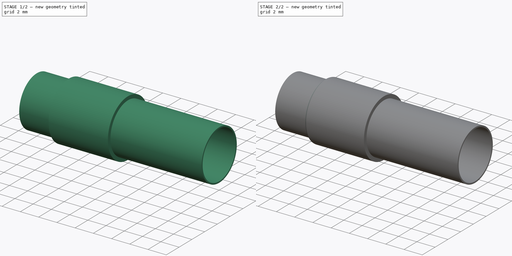
[diagram: build sequence overview — one tinted view per stage of 2, left to right]
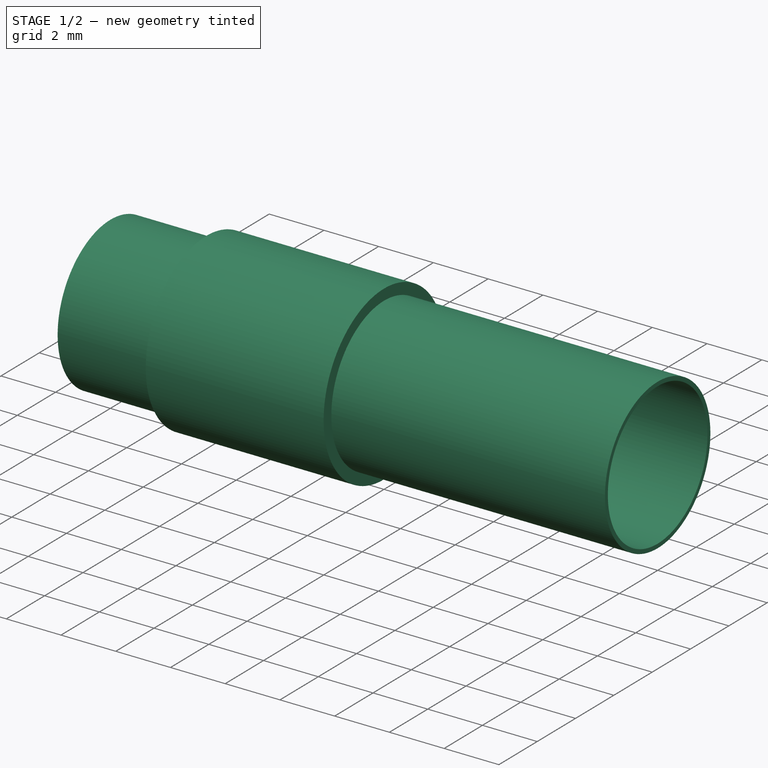
[diagram: stage 1 of 2 — iso view after this stage's code; geometry added in this stage tinted green]
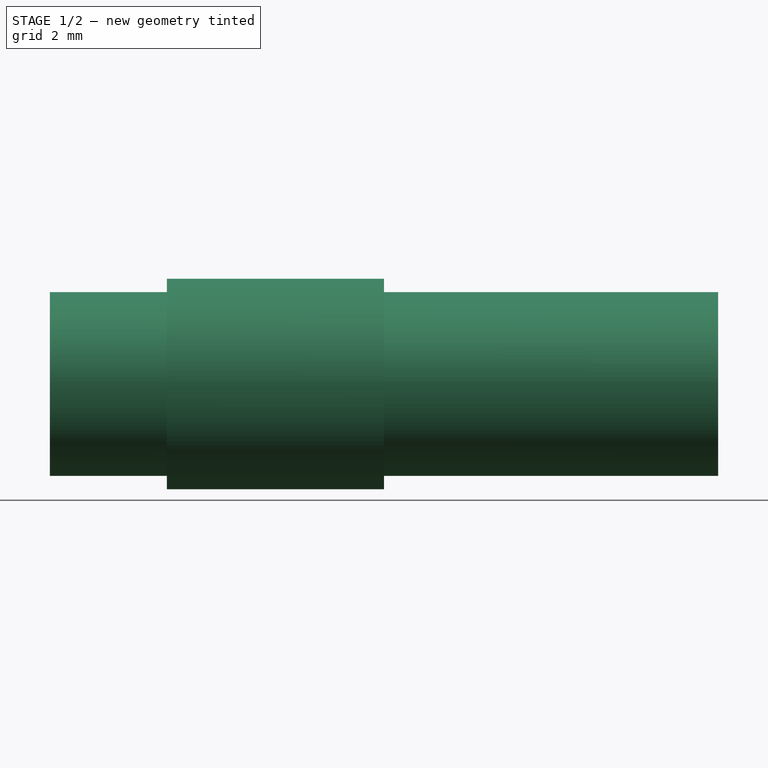
[diagram: stage 1 of 2 — front view after this stage's code; geometry added in this stage tinted green]
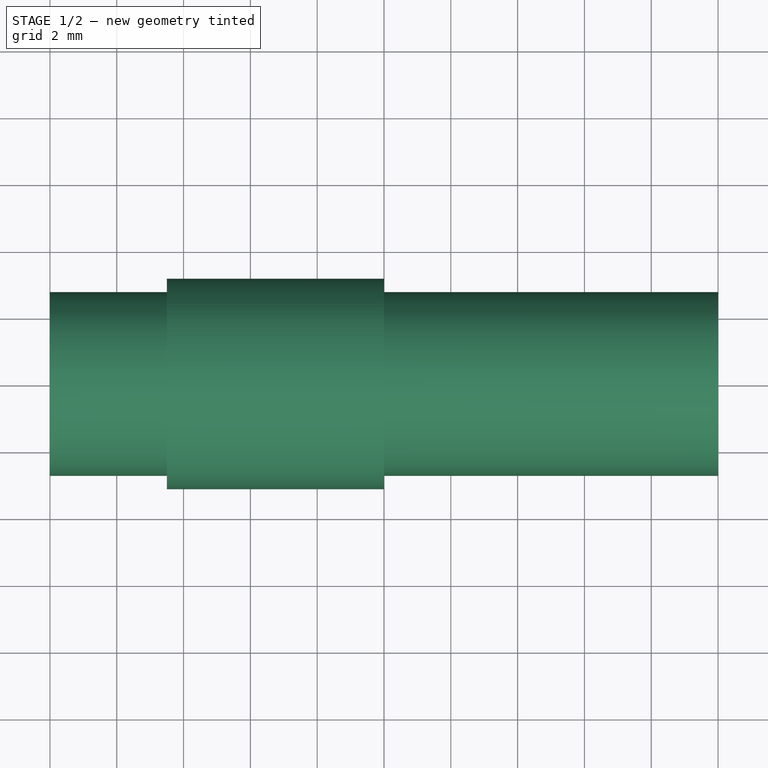
[diagram: stage 1 of 2 — top view after this stage's code; geometry added in this stage tinted green]
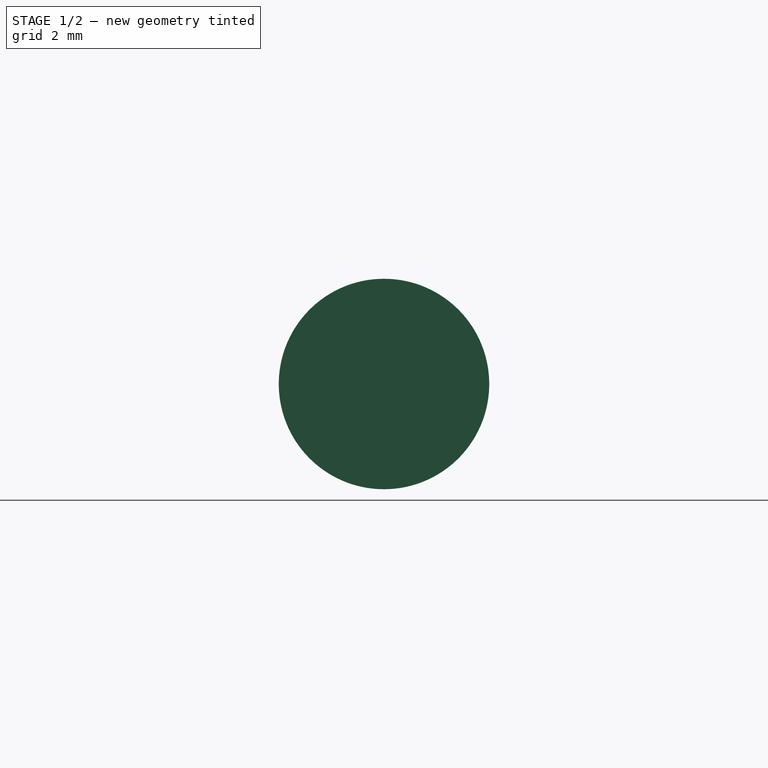
[diagram: stage 1 of 2 — right view after this stage's code; geometry added in this stage tinted green]
FCSTD DOCUMENT  (FreeCAD 0.19R22522 (Git))
Label: Glas_Fuse_6,3x32
License: All rights reserved
LicenseURL: http://en.wikipedia.org/wiki/All_rights_reserved
objects: Sketcher::SketchObject×1, PartDesign::Revolution×1, PartDesign::Fillet×1, PartDesign::Body×1, App::Link×1, Part::FeaturePython×1
note: 7 computed .brp shape members not serialized (recipe doc carries the construction recipe); baked Part::Feature solids carry a one-line shape summary decoded from their .brp

FEATURE [Sketcher::SketchObject] Sketch
  MapMode = 5
  Placement = pos=(0,0,0) rot=(1,0,0;1.5708rad)
  Support = -> [XZ_Plane]
  sketch-geometry (6):
    g0: LineSegment StartX=0 StartY=3.15 StartZ=0 EndX=-6.5 EndY=3.15 EndZ=0
    g1: LineSegment StartX=-5 StartY=2.75 StartZ=0 EndX=0 EndY=2.75 EndZ=0
    g2: LineSegment StartX=0 StartY=2.75 StartZ=0 EndX=0 EndY=3.15 EndZ=0
    g3: LineSegment StartX=-6.5 StartY=3.15 StartZ=0 EndX=-6.5 EndY=0 EndZ=0
    g4: LineSegment StartX=-5 StartY=2.75 StartZ=0 EndX=-5 EndY=0 EndZ=0
    g5: LineSegment StartX=-6.5 StartY=0 StartZ=0 EndX=-5 EndY=0 EndZ=0
  constraints (18):
    c: PointOnObject(g0,g-2)
    c: Horizontal(g0)
    c: PointOnObject(g1,g-2)
    c: Horizontal(g1)
    c: Coincident(g2,g1)
    c: Coincident(g2,g0)
    c: DistanceX(g0,g0) = 6.5
    c: DistanceX(g1,g1) = 5
    c: Coincident(g3,g0)
    c: Vertical(g3)
    c: Coincident(g4,g1)
    c: PointOnObject(g4,g-1)
    c: Vertical(g4)
    c: DistanceY(g3,g3) = 3.15
    c: DistanceY(g4,g4) = 2.75
    c: PointOnObject(g3,g-1)
    c: Coincident(g5,g3)
    c: Coincident(g5,g4)
FEATURE [PartDesign::Revolution] Revolution
  Angle = 360
  Axis = (1,0,0)
  Base = (0,0,0)
  Placement = pos=(0,0,0) rot=(1,0,0;1.5708rad)
  Profile = -> Sketch
  ReferenceAxis = -> Sketch [H_Axis]
FEATURE [PartDesign::Body] Body  label="socket"
  Group = -> [Sketch,Revolution,Fillet]
  Origin = -> Origin
  Placement = pos=(-9.5,0,0) rot=(0,0,1;0rad)
  Tip = -> Fillet
FEATURE [App::Link] Link  label="socket001"
  LinkPlacement = pos=(9.5,0,0) rot=(0,0,1;3.14159rad)
  LinkedObject = -> Body
  Placement = pos=(9.5,0,0) rot=(0,0,1;3.14159rad)
FEATURE [Part::FeaturePython] Tube  # WARN: FeaturePython — macro-defined, semantics opaque (R4)
  AttacherType = Attacher::AttachEngine3D
  Height = 20
  InnerRadius = 2.6
  OuterRadius = 2.75
  Placement = pos=(10,0,0) rot=(0,1,0;4.71239rad)
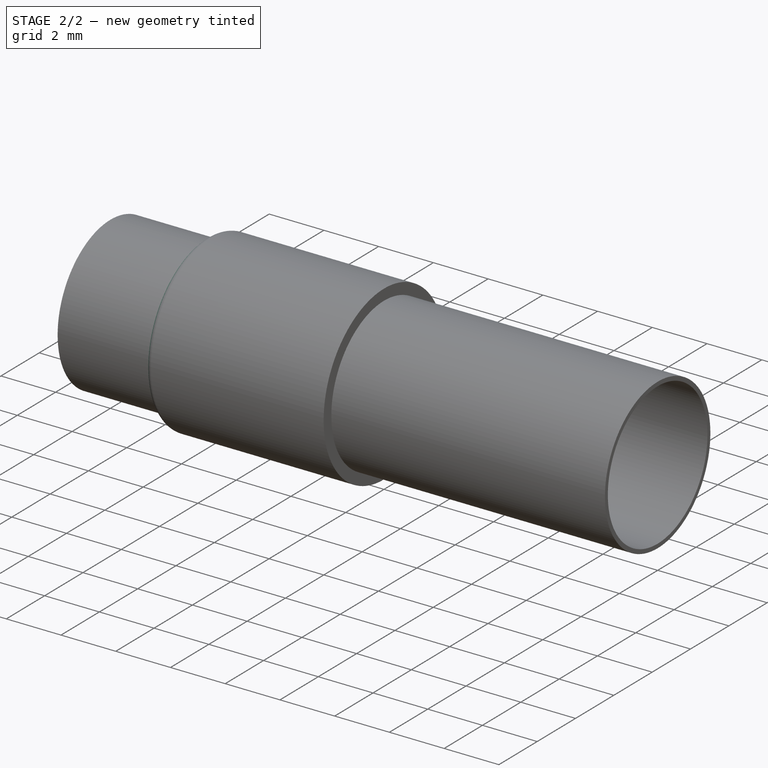
[diagram: stage 2 of 2 — iso view after this stage's code; geometry added in this stage tinted green]
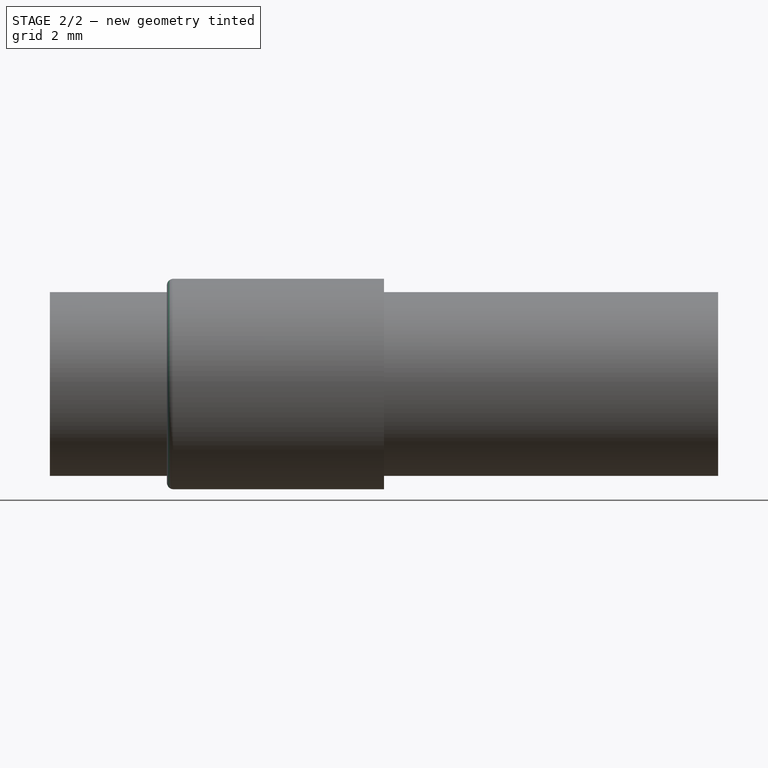
[diagram: stage 2 of 2 — front view after this stage's code; geometry added in this stage tinted green]
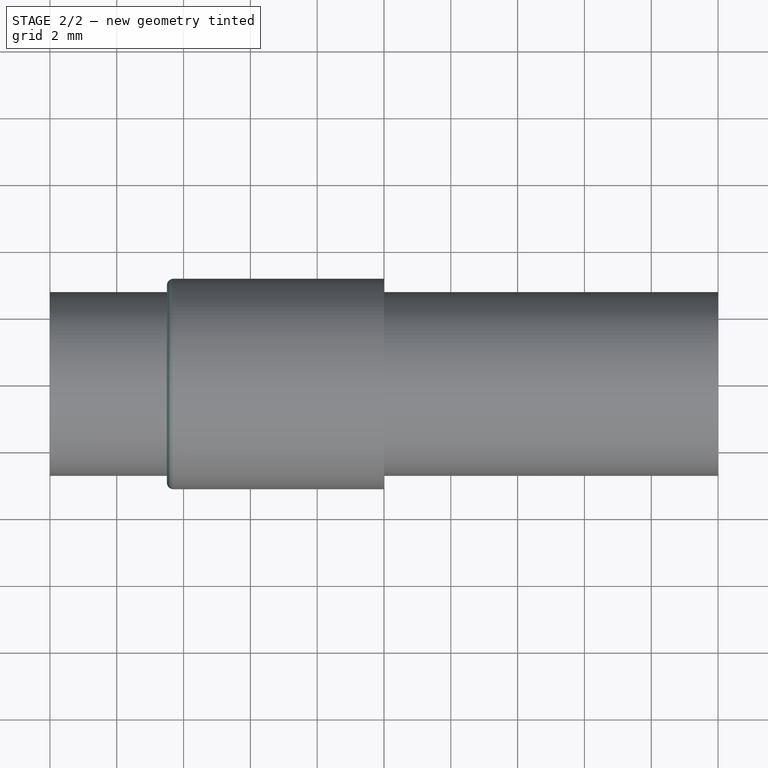
[diagram: stage 2 of 2 — top view after this stage's code; geometry added in this stage tinted green]
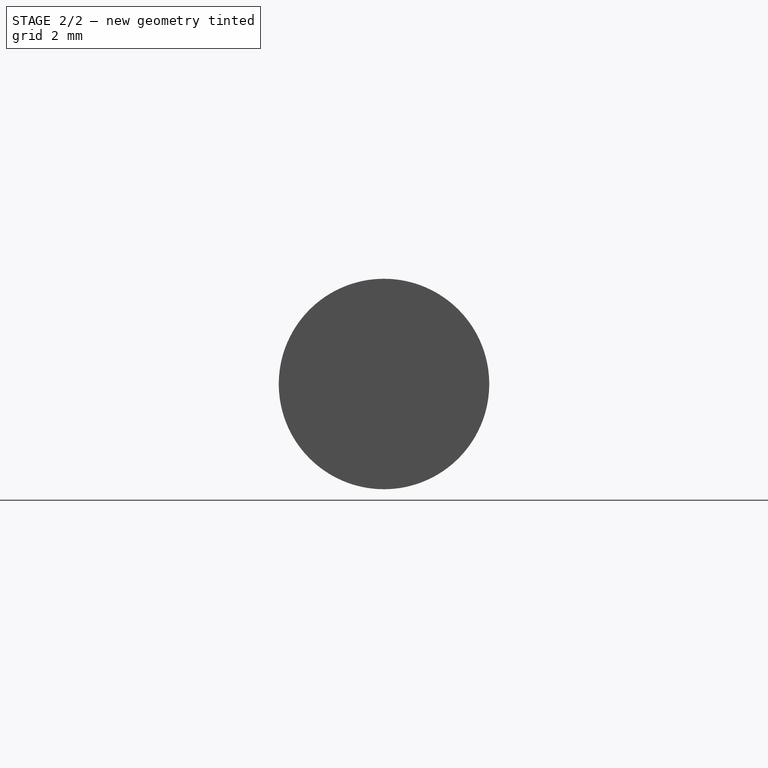
[diagram: stage 2 of 2 — right view after this stage's code; geometry added in this stage tinted green]
FEATURE [PartDesign::Fillet] Fillet
  Base = -> Revolution [Edge5]
  BaseFeature = -> Revolution
  Placement = pos=(0,0,0) rot=(1,0,0;1.5708rad)
  Radius = 0.2
  SupportTransform = false
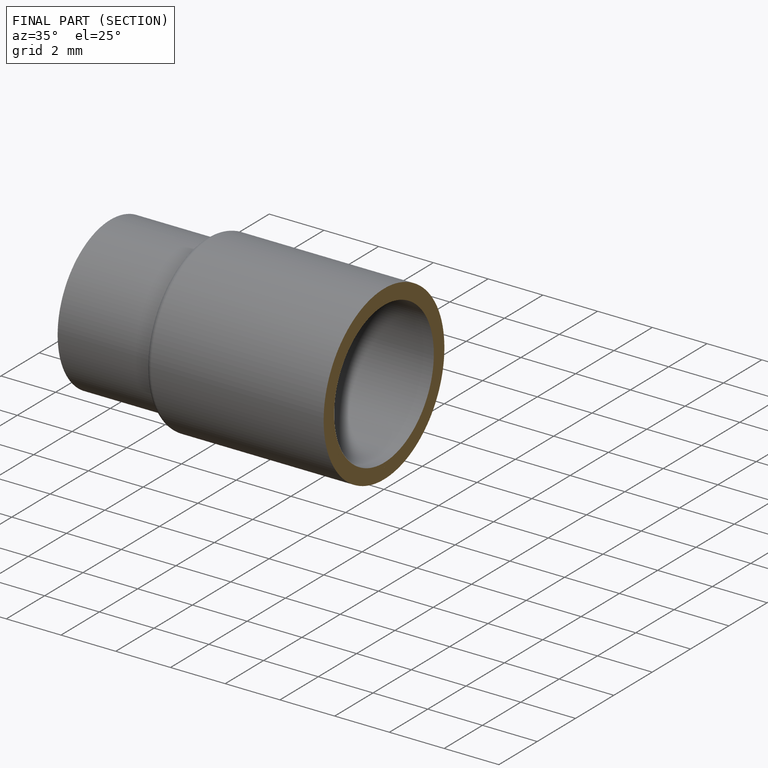
[diagram: finished part — half-section view (interior)]
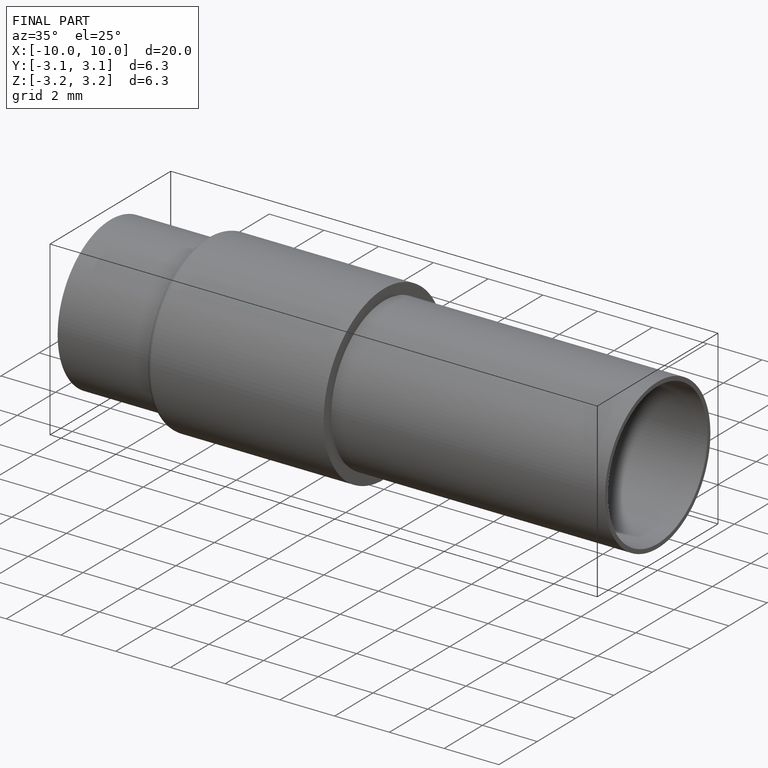
[diagram: finished part — iso view with bounding-box wireframe]
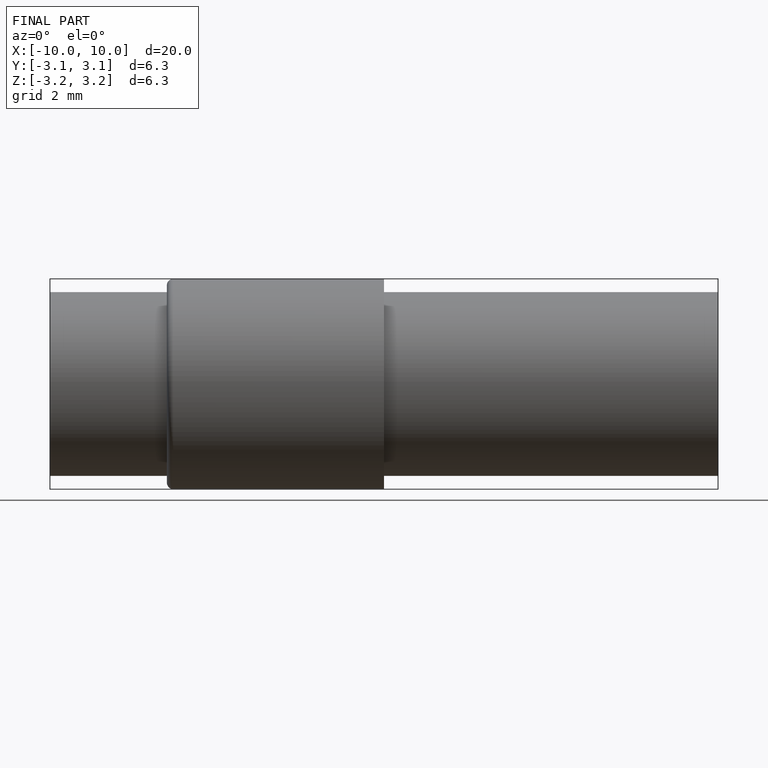
[diagram: finished part — front view with bounding-box wireframe]
